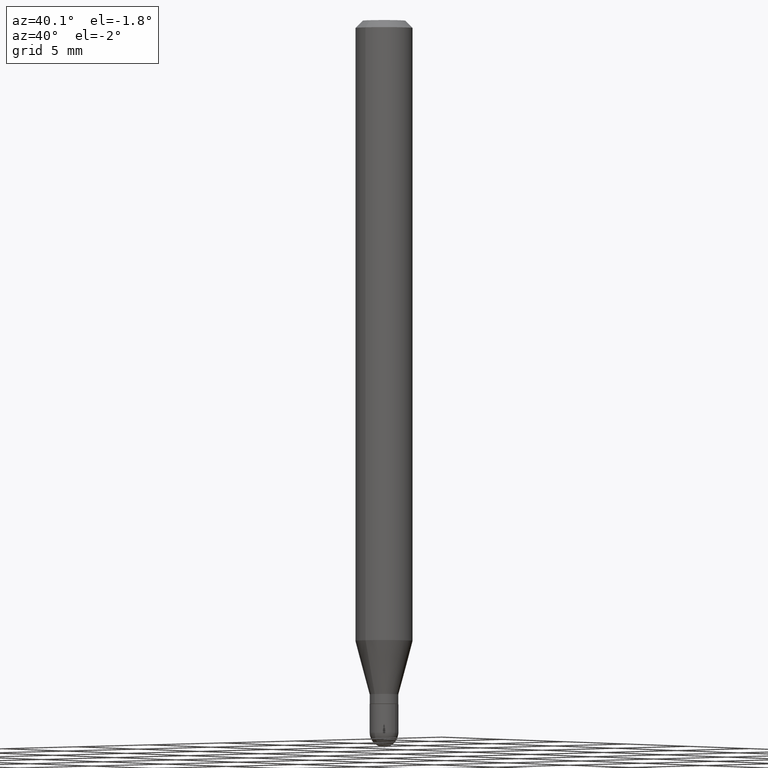
[diagram: clean part render]
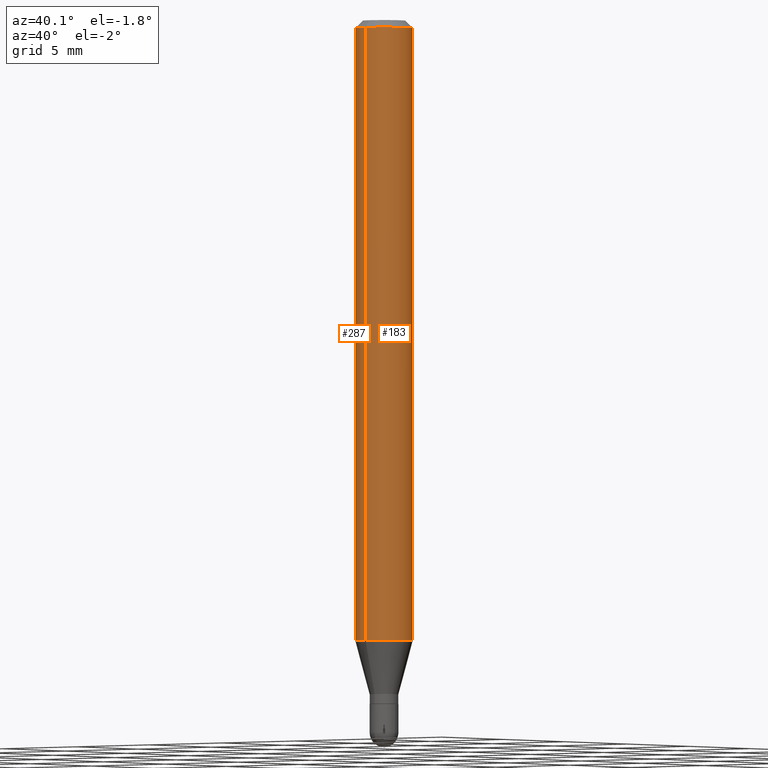
[diagram: same view with one multi-face feature highlighted, each face labeled with its STEP entity id]
A machine part, auxiliary view. The highlighted faces form ONE feature: a constant-radius fillet chain: 2 tangent blend faces with common blend radius 1.4999 mm. The faces share edges in the B-rep.
Their STEP definitions:
[1] entity #287 (Cylinder):
#13 = LINE ( 'NONE', #443, #375 ) ;
#47 = ORIENTED_EDGE ( 'NONE', *, *, #184, .T. ) ;
#48 = CARTESIAN_POINT ( 'NONE',  ( -4.123439461173736383E-16, -0.05905000000000005383, -0.01499999999999988495 ) ) ;
#50 = EDGE_CURVE ( 'NONE', #138, #142, #262, .T. ) ;
#75 = CIRCLE ( 'NONE', #364, 0.05904999999999999832 ) ;
#80 = CARTESIAN_POINT ( 'NONE',  ( 4.195754854663705544E-16, 0.05904999999999994975, -0.01500000000000029955 ) ) ;
#133 = EDGE_CURVE ( 'NONE', #142, #268, #75, .T. ) ;
#138 = VERTEX_POINT ( 'NONE', #356 ) ;
#142 = VERTEX_POINT ( 'NONE', #80 ) ;
#145 = AXIS2_PLACEMENT_3D ( 'NONE', #244, #252, #407 ) ;
#169 = EDGE_LOOP ( 'NONE', ( #194, #47, #195, #223 ) ) ;
#184 = EDGE_CURVE ( 'NONE', #138, #202, #266, .T. ) ;
#191 = DIRECTION ( 'NONE',  ( -2.445527102149587346E-29, 3.491397855704051145E-15, 1.000000000000000000 ) ) ;
#194 = ORIENTED_EDGE ( 'NONE', *, *, #50, .F. ) ;
#195 = ORIENTED_EDGE ( 'NONE', *, *, #310, .T. ) ;
#202 = VERTEX_POINT ( 'NONE', #291 ) ;
#209 = CYLINDRICAL_SURFACE ( 'NONE', #429, 0.05904999999999999832 ) ;
#223 = ORIENTED_EDGE ( 'NONE', *, *, #133, .F. ) ;
#244 = CARTESIAN_POINT ( 'NONE',  ( 3.122949117194679067E-29, -4.458530777132816558E-15, -1.277004501176718154 ) ) ;
#252 = DIRECTION ( 'NONE',  ( -2.445527102149587346E-29, 3.491397855704051540E-15, 1.000000000000000000 ) ) ;
#262 = LINE ( 'NONE', #426, #328 ) ;
#266 = CIRCLE ( 'NONE', #145, 0.05904999999999999832 ) ;
#268 = VERTEX_POINT ( 'NONE', #48 ) ;
#287 = ADVANCED_FACE ( 'NONE', ( #320 ), #209, .T. ) ;
#291 = CARTESIAN_POINT ( 'NONE',  ( -4.123439461173429220E-16, -0.05905000000000448085, -1.277004501176717932 ) ) ;
#310 = EDGE_CURVE ( 'NONE', #202, #268, #13, .T. ) ;
#315 = DIRECTION ( 'NONE',  ( -2.445527102149587346E-29, 3.491397855704051540E-15, 1.000000000000000000 ) ) ;
#320 = FACE_OUTER_BOUND ( 'NONE', #169, .T. ) ;
#328 = VECTOR ( 'NONE', #191, 39.37007874015748143 ) ;
#356 = CARTESIAN_POINT ( 'NONE',  ( 4.195754854663701106E-16, 0.05904999999999551580, -1.277004501176718376 ) ) ;
#364 = AXIS2_PLACEMENT_3D ( 'NONE', #469, #315, #395 ) ;
#365 = DIRECTION ( 'NONE',  ( -2.445527102149587346E-29, 3.491397855704051145E-15, 1.000000000000000000 ) ) ;
#375 = VECTOR ( 'NONE', #365, 39.37007874015748143 ) ;
#395 = DIRECTION ( 'NONE',  ( -6.982962677686265922E-15, -1.000000000000000000, 3.505890868245046092E-15 ) ) ;
#407 = DIRECTION ( 'NONE',  ( -6.982962677686265922E-15, -1.000000000000000000, 4.626330217890369336E-15 ) ) ;
#410 = DIRECTION ( 'NONE',  ( -2.445527102149587346E-29, 3.491397855704051540E-15, 1.000000000000000000 ) ) ;
#414 = DIRECTION ( 'NONE',  ( -6.982962677686265922E-15, -1.000000000000000000, 3.491397855704051540E-15 ) ) ;
#426 = CARTESIAN_POINT ( 'NONE',  ( 4.195754854663390985E-16, 0.05904999999999999832, -2.061670433793242399E-16 ) ) ;
#429 = AXIS2_PLACEMENT_3D ( 'NONE', #482, #410, #414 ) ;
#443 = CARTESIAN_POINT ( 'NONE',  ( -4.123439461173739834E-16, -0.05904999999999999832, 2.061670433793242399E-16 ) ) ;
#469 = CARTESIAN_POINT ( 'NONE',  ( 3.668290653224403387E-31, -5.237096783556109678E-17, -0.01500000000000009139 ) ) ;
#482 = CARTESIAN_POINT ( 'NONE',  ( 0.000000000000000000, 0.000000000000000000, 0.000000000000000000 ) ) ;
[2] entity #183 (Cylinder):
#2 = DIRECTION ( 'NONE',  ( -2.445527102149587346E-29, 3.491397855704051540E-15, 1.000000000000000000 ) ) ;
#13 = LINE ( 'NONE', #443, #375 ) ;
#48 = CARTESIAN_POINT ( 'NONE',  ( -4.123439461173736383E-16, -0.05905000000000005383, -0.01499999999999988495 ) ) ;
#50 = EDGE_CURVE ( 'NONE', #138, #142, #262, .T. ) ;
#74 = EDGE_LOOP ( 'NONE', ( #379, #251, #270, #286 ) ) ;
#80 = CARTESIAN_POINT ( 'NONE',  ( 4.195754854663705544E-16, 0.05904999999999994975, -0.01500000000000029955 ) ) ;
#83 = CARTESIAN_POINT ( 'NONE',  ( 0.000000000000000000, 0.000000000000000000, 0.000000000000000000 ) ) ;
#116 = EDGE_CURVE ( 'NONE', #268, #142, #182, .T. ) ;
#124 = CIRCLE ( 'NONE', #151, 0.05904999999999999832 ) ;
#125 = FACE_OUTER_BOUND ( 'NONE', #74, .T. ) ;
#127 = DIRECTION ( 'NONE',  ( -6.982962677686265922E-15, -1.000000000000000000, 3.491397855704051540E-15 ) ) ;
#138 = VERTEX_POINT ( 'NONE', #356 ) ;
#142 = VERTEX_POINT ( 'NONE', #80 ) ;
#147 = CARTESIAN_POINT ( 'NONE',  ( 3.668290653224403387E-31, -5.237096783556109678E-17, -0.01500000000000009139 ) ) ;
#151 = AXIS2_PLACEMENT_3D ( 'NONE', #349, #2, #235 ) ;
#182 = CIRCLE ( 'NONE', #294, 0.05904999999999999832 ) ;
#183 = ADVANCED_FACE ( 'NONE', ( #125 ), #441, .T. ) ;
#191 = DIRECTION ( 'NONE',  ( -2.445527102149587346E-29, 3.491397855704051145E-15, 1.000000000000000000 ) ) ;
#202 = VERTEX_POINT ( 'NONE', #291 ) ;
#235 = DIRECTION ( 'NONE',  ( -6.982962677686265922E-15, -1.000000000000000000, 4.626330217890369336E-15 ) ) ;
#251 = ORIENTED_EDGE ( 'NONE', *, *, #50, .T. ) ;
#262 = LINE ( 'NONE', #426, #328 ) ;
#268 = VERTEX_POINT ( 'NONE', #48 ) ;
#270 = ORIENTED_EDGE ( 'NONE', *, *, #116, .F. ) ;
#286 = ORIENTED_EDGE ( 'NONE', *, *, #310, .F. ) ;
#291 = CARTESIAN_POINT ( 'NONE',  ( -4.123439461173429220E-16, -0.05905000000000448085, -1.277004501176717932 ) ) ;
#294 = AXIS2_PLACEMENT_3D ( 'NONE', #147, #298, #383 ) ;
#298 = DIRECTION ( 'NONE',  ( -2.445527102149587346E-29, 3.491397855704051540E-15, 1.000000000000000000 ) ) ;
#307 = DIRECTION ( 'NONE',  ( -2.445527102149587346E-29, 3.491397855704051540E-15, 1.000000000000000000 ) ) ;
#310 = EDGE_CURVE ( 'NONE', #202, #268, #13, .T. ) ;
#328 = VECTOR ( 'NONE', #191, 39.37007874015748143 ) ;
#349 = CARTESIAN_POINT ( 'NONE',  ( 3.122949117194679067E-29, -4.458530777132816558E-15, -1.277004501176718154 ) ) ;
#356 = CARTESIAN_POINT ( 'NONE',  ( 4.195754854663701106E-16, 0.05904999999999551580, -1.277004501176718376 ) ) ;
#365 = DIRECTION ( 'NONE',  ( -2.445527102149587346E-29, 3.491397855704051145E-15, 1.000000000000000000 ) ) ;
#375 = VECTOR ( 'NONE', #365, 39.37007874015748143 ) ;
#379 = ORIENTED_EDGE ( 'NONE', *, *, #397, .T. ) ;
#383 = DIRECTION ( 'NONE',  ( -6.982962677686265922E-15, -1.000000000000000000, 3.505890868245046092E-15 ) ) ;
#397 = EDGE_CURVE ( 'NONE', #202, #138, #124, .T. ) ;
#426 = CARTESIAN_POINT ( 'NONE',  ( 4.195754854663390985E-16, 0.05904999999999999832, -2.061670433793242399E-16 ) ) ;
#441 = CYLINDRICAL_SURFACE ( 'NONE', #500, 0.05904999999999999832 ) ;
#443 = CARTESIAN_POINT ( 'NONE',  ( -4.123439461173739834E-16, -0.05904999999999999832, 2.061670433793242399E-16 ) ) ;
#500 = AXIS2_PLACEMENT_3D ( 'NONE', #83, #307, #127 ) ;